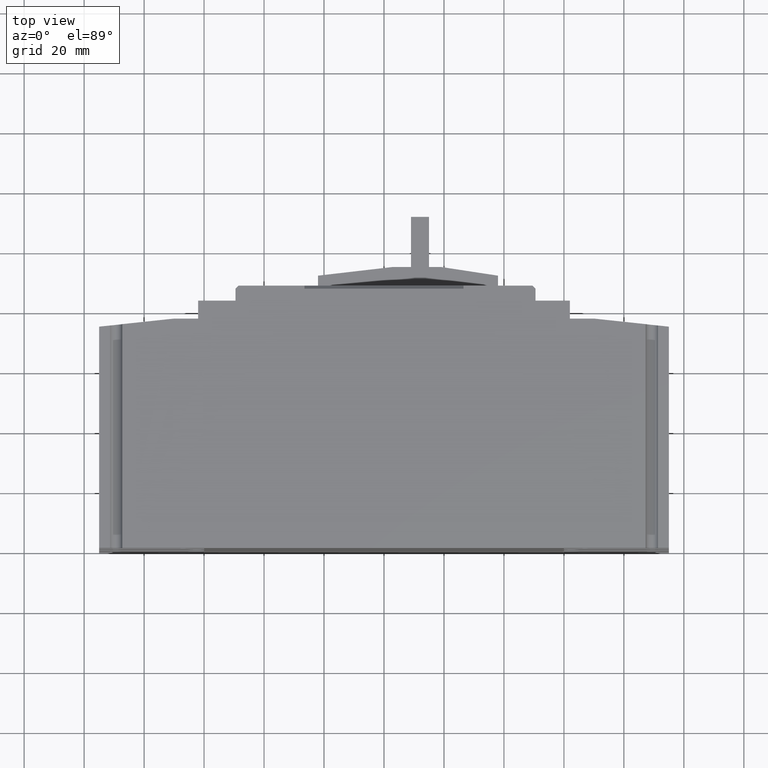
[diagram: clean part render]
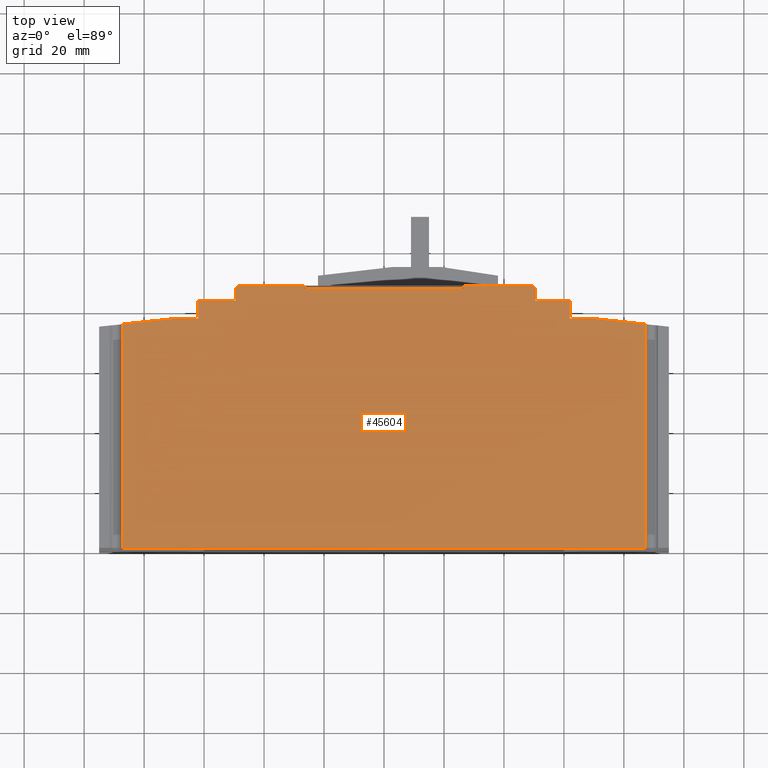
[diagram: same view with one face highlighted and labeled with its STEP entity id]
A machine part, top view. The second image highlights one B-rep face of the part: STEP entity #45604.
In plain terms, the highlighted planar face has unit normal (0, 0, 1).
Its self-contained STEP definition (entity closure, byte-faithful):
#690 = EDGE_CURVE ( 'NONE', #60217, #16622, #996, .T. ) ;
#996 = LINE ( 'NONE', #29893, #28588 ) ;
#1283 = VERTEX_POINT ( 'NONE', #23541 ) ;
#2080 = CARTESIAN_POINT ( 'NONE',  ( 1.043307086614173151, 3.405511811023621771, 2.066929133858268042 ) ) ;
#2768 = VECTOR ( 'NONE', #61384, 39.37007874015748854 ) ;
#3944 = LINE ( 'NONE', #38219, #2768 ) ;
#4146 = EDGE_CURVE ( 'NONE', #67129, #72442, #62729, .T. ) ;
#4301 = VERTEX_POINT ( 'NONE', #37973 ) ;
#5360 = LINE ( 'NONE', #75494, #38056 ) ;
#6426 = VECTOR ( 'NONE', #22695, 39.37007874015748143 ) ;
#6940 = ORIENTED_EDGE ( 'NONE', *, *, #30574, .T. ) ;
#7418 = VECTOR ( 'NONE', #69708, 39.37007874015748143 ) ;
#7577 = VECTOR ( 'NONE', #58575, 39.37007874015748143 ) ;
#7692 = VECTOR ( 'NONE', #20876, 39.37007874015748143 ) ;
#7850 = EDGE_CURVE ( 'NONE', #42527, #24253, #68748, .T. ) ;
#8232 = PLANE ( 'NONE',  #25455 ) ;
#8339 = LINE ( 'NONE', #73851, #23575 ) ;
#9472 = DIRECTION ( 'NONE',  ( 1.000000000000000000, 0.000000000000000000, 0.000000000000000000 ) ) ;
#10172 = EDGE_CURVE ( 'NONE', #31969, #14924, #3944, .T. ) ;
#10959 = VERTEX_POINT ( 'NONE', #47509 ) ;
#12604 = CARTESIAN_POINT ( 'NONE',  ( -3.437007874015748143, 0.000000000000000000, 2.066929133858267598 ) ) ;
#12917 = ORIENTED_EDGE ( 'NONE', *, *, #690, .T. ) ;
#13585 = VECTOR ( 'NONE', #58121, 39.37007874015748143 ) ;
#13627 = VECTOR ( 'NONE', #13734, 39.37007874015748143 ) ;
#13734 = DIRECTION ( 'NONE',  ( -1.000000000000000000, -0.000000000000000000, 0.000000000000000000 ) ) ;
#13758 = EDGE_CURVE ( 'NONE', #1283, #28240, #15140, .T. ) ;
#13808 = VECTOR ( 'NONE', #39438, 39.37007874015748854 ) ;
#14924 = VERTEX_POINT ( 'NONE', #36818 ) ;
#15107 = CARTESIAN_POINT ( 'NONE',  ( -2.755905511811036934, 3.011811023622046335, 2.066929133858267598 ) ) ;
#15140 = LINE ( 'NONE', #62866, #47527 ) ;
#15962 = CARTESIAN_POINT ( 'NONE',  ( -1.929133858267716661, 3.425196850393701364, 2.066929133858268930 ) ) ;
#15995 = CARTESIAN_POINT ( 'NONE',  ( 1.988188976377952999, 3.248031496062992574, 2.066929133858267598 ) ) ;
#16622 = VERTEX_POINT ( 'NONE', #42474 ) ;
#16826 = CARTESIAN_POINT ( 'NONE',  ( -3.740157480314960647, 3.248031496062992574, 2.066929133858267598 ) ) ;
#17096 = LINE ( 'NONE', #34854, #26410 ) ;
#18355 = LINE ( 'NONE', #12604, #33857 ) ;
#18667 = VERTEX_POINT ( 'NONE', #38019 ) ;
#19724 = CARTESIAN_POINT ( 'NONE',  ( -1.909448818897637734, 3.444881889763780514, 2.066929133858268930 ) ) ;
#20876 = DIRECTION ( 'NONE',  ( 0.000000000000000000, 1.000000000000000000, 0.000000000000000000 ) ) ;
#21775 = VERTEX_POINT ( 'NONE', #22177 ) ;
#21916 = CARTESIAN_POINT ( 'NONE',  ( -2.440944881889763884, 3.248031496062992574, 2.066929133858267598 ) ) ;
#22104 = CARTESIAN_POINT ( 'NONE',  ( 1.043307086614173151, 3.444881889763780070, 2.066929133858267598 ) ) ;
#22177 = CARTESIAN_POINT ( 'NONE',  ( -1.948818897637795589, 3.248031496062992574, 2.066929133858267598 ) ) ;
#22341 = DIRECTION ( 'NONE',  ( -1.000000000000000000, -0.000000000000000000, 0.000000000000000000 ) ) ;
#22658 = CARTESIAN_POINT ( 'NONE',  ( 3.437007874015748143, 0.000000000000000000, 2.066929133858267598 ) ) ;
#22695 = DIRECTION ( 'NONE',  ( 0.000000000000000000, -1.000000000000000000, -0.000000000000000000 ) ) ;
#23541 = CARTESIAN_POINT ( 'NONE',  ( 1.948818897637795367, 3.444881889763780070, 2.066929133858268486 ) ) ;
#23575 = VECTOR ( 'NONE', #9472, 39.37007874015748143 ) ;
#24218 = VECTOR ( 'NONE', #47815, 39.37007874015748143 ) ;
#24253 = VERTEX_POINT ( 'NONE', #19724 ) ;
#24475 = DIRECTION ( 'NONE',  ( -0.000000000000000000, 1.000000000000000000, 0.000000000000000000 ) ) ;
#25317 = LINE ( 'NONE', #36875, #75545 ) ;
#25455 = AXIS2_PLACEMENT_3D ( 'NONE', #31738, #55256, #61406 ) ;
#25639 = VERTEX_POINT ( 'NONE', #26558 ) ;
#25855 = EDGE_CURVE ( 'NONE', #1283, #38668, #5360, .T. ) ;
#25912 = CARTESIAN_POINT ( 'NONE',  ( 3.437007874015748143, 3.011811023622047223, 2.066929133858267598 ) ) ;
#26264 = CARTESIAN_POINT ( 'NONE',  ( -1.043307086614173151, 3.405511811023622215, 2.066929133858267598 ) ) ;
#26410 = VECTOR ( 'NONE', #28287, 39.37007874015748143 ) ;
#26558 = CARTESIAN_POINT ( 'NONE',  ( -3.437007874015748143, 0.000000000000000000, 2.066929133858267598 ) ) ;
#27033 = ORIENTED_EDGE ( 'NONE', *, *, #25855, .T. ) ;
#27666 = ORIENTED_EDGE ( 'NONE', *, *, #60574, .T. ) ;
#27689 = ORIENTED_EDGE ( 'NONE', *, *, #58168, .T. ) ;
#27829 = EDGE_CURVE ( 'NONE', #75397, #60217, #34683, .T. ) ;
#28240 = VERTEX_POINT ( 'NONE', #52689 ) ;
#28287 = DIRECTION ( 'NONE',  ( 0.000000000000000000, -1.000000000000000000, -0.000000000000000000 ) ) ;
#28444 = DIRECTION ( 'NONE',  ( -1.000000000000000000, -0.000000000000000000, 0.000000000000000000 ) ) ;
#28588 = VECTOR ( 'NONE', #24475, 39.37007874015748143 ) ;
#29195 = CARTESIAN_POINT ( 'NONE',  ( -1.948818897637795589, 3.405511811023622215, 2.066929133858268042 ) ) ;
#29547 = DIRECTION ( 'NONE',  ( -1.000000000000000000, -0.000000000000000000, 0.000000000000000000 ) ) ;
#29665 = CARTESIAN_POINT ( 'NONE',  ( -3.740157480314960647, 3.405511811023622215, 2.066929133858267598 ) ) ;
#29893 = CARTESIAN_POINT ( 'NONE',  ( -1.043307086614173151, 0.000000000000000000, 2.066929133858267598 ) ) ;
#30448 = EDGE_LOOP ( 'NONE', ( #69252, #12917, #61517, #46206, #34714, #70308, #27689, #69878, #59277, #49672, #51989, #6940, #38916, #45428, #59156, #54321, #41354, #69284, #27033, #27666 ) ) ;
#30574 = EDGE_CURVE ( 'NONE', #70862, #4301, #73343, .T. ) ;
#31161 = EDGE_CURVE ( 'NONE', #21775, #47436, #52395, .T. ) ;
#31738 = CARTESIAN_POINT ( 'NONE',  ( -3.740157480314960647, 0.000000000000000000, 2.066929133858267598 ) ) ;
#31969 = VERTEX_POINT ( 'NONE', #15107 ) ;
#33235 = EDGE_CURVE ( 'NONE', #10959, #31969, #74410, .T. ) ;
#33857 = VECTOR ( 'NONE', #65784, 39.37007874015748143 ) ;
#34683 = LINE ( 'NONE', #29665, #7577 ) ;
#34714 = ORIENTED_EDGE ( 'NONE', *, *, #65970, .T. ) ;
#34854 = CARTESIAN_POINT ( 'NONE',  ( 1.043307086614173151, 0.000000000000000000, 2.066929133858267598 ) ) ;
#35779 = LINE ( 'NONE', #58535, #6426 ) ;
#36541 = VERTEX_POINT ( 'NONE', #45785 ) ;
#36818 = CARTESIAN_POINT ( 'NONE',  ( -3.437007874015747699, 2.939069291338586964, 2.066929133858267598 ) ) ;
#36875 = CARTESIAN_POINT ( 'NONE',  ( -2.440944881889763884, 0.000000000000000000, 2.066929133858267598 ) ) ;
#37264 = VECTOR ( 'NONE', #22341, 39.37007874015748143 ) ;
#37753 = EDGE_CURVE ( 'NONE', #72442, #28240, #63537, .T. ) ;
#37973 = CARTESIAN_POINT ( 'NONE',  ( 3.437007874015748587, 2.939069291338573642, 2.066929133858267598 ) ) ;
#38019 = CARTESIAN_POINT ( 'NONE',  ( 2.440944881889763884, 3.011811023622047223, 2.066929133858267598 ) ) ;
#38056 = VECTOR ( 'NONE', #28444, 39.37007874015748143 ) ;
#38128 = VECTOR ( 'NONE', #73239, 39.37007874015748143 ) ;
#38219 = CARTESIAN_POINT ( 'NONE',  ( -2.755905511811024056, 3.011811023622047223, 2.066929133858267598 ) ) ;
#38668 = VERTEX_POINT ( 'NONE', #22104 ) ;
#38842 = LINE ( 'NONE', #45001, #38128 ) ;
#38916 = ORIENTED_EDGE ( 'NONE', *, *, #45886, .T. ) ;
#39438 = DIRECTION ( 'NONE',  ( 0.7071067811865474617, 0.7071067811865474617, -0.000000000000000000 ) ) ;
#41354 = ORIENTED_EDGE ( 'NONE', *, *, #37753, .T. ) ;
#41639 = CARTESIAN_POINT ( 'NONE',  ( 3.437007874015748587, 2.939069291338582968, 2.066929133858267598 ) ) ;
#42474 = CARTESIAN_POINT ( 'NONE',  ( -1.043307086614173151, 3.444881889763780070, 2.066929133858267598 ) ) ;
#42527 = VERTEX_POINT ( 'NONE', #29195 ) ;
#43318 = EDGE_CURVE ( 'NONE', #16622, #24253, #66534, .T. ) ;
#43662 = FACE_OUTER_BOUND ( 'NONE', #30448, .T. ) ;
#43990 = DIRECTION ( 'NONE',  ( 0.7071067811865474617, -0.7071067811865474617, -0.000000000000000000 ) ) ;
#45001 = CARTESIAN_POINT ( 'NONE',  ( -3.740157480314960647, 3.011811023622047223, 2.066929133858267598 ) ) ;
#45428 = ORIENTED_EDGE ( 'NONE', *, *, #70738, .T. ) ;
#45604 = ADVANCED_FACE ( 'NONE', ( #43662 ), #8232, .T. ) ;
#45785 = CARTESIAN_POINT ( 'NONE',  ( 2.755905511811004960, 3.011811023622048555, 2.066929133858267598 ) ) ;
#45886 = EDGE_CURVE ( 'NONE', #4301, #36541, #47443, .T. ) ;
#46194 = CARTESIAN_POINT ( 'NONE',  ( -3.740157480314960647, 3.011811023622047223, 2.066929133858267598 ) ) ;
#46206 = ORIENTED_EDGE ( 'NONE', *, *, #7850, .F. ) ;
#46520 = LINE ( 'NONE', #65825, #13585 ) ;
#46961 = CARTESIAN_POINT ( 'NONE',  ( 2.440944881889763884, 3.248031496062992574, 2.066929133858267598 ) ) ;
#47436 = VERTEX_POINT ( 'NONE', #21916 ) ;
#47443 = LINE ( 'NONE', #41639, #24218 ) ;
#47509 = CARTESIAN_POINT ( 'NONE',  ( -2.440944881889763884, 3.011811023622047223, 2.066929133858267598 ) ) ;
#47527 = VECTOR ( 'NONE', #43990, 39.37007874015748854 ) ;
#47815 = DIRECTION ( 'NONE',  ( -0.9943452092047680990, 0.1061960683430690500, 0.000000000000000000 ) ) ;
#49672 = ORIENTED_EDGE ( 'NONE', *, *, #61323, .T. ) ;
#51989 = ORIENTED_EDGE ( 'NONE', *, *, #72290, .T. ) ;
#52395 = LINE ( 'NONE', #58194, #37264 ) ;
#52689 = CARTESIAN_POINT ( 'NONE',  ( 1.988188976377953221, 3.405511811023622215, 2.066929133858268042 ) ) ;
#54321 = ORIENTED_EDGE ( 'NONE', *, *, #4146, .T. ) ;
#55256 = DIRECTION ( 'NONE',  ( 0.000000000000000000, 0.000000000000000000, 1.000000000000000000 ) ) ;
#55348 = CARTESIAN_POINT ( 'NONE',  ( -3.740157480314960647, 3.444881889763780070, 2.066929133858267598 ) ) ;
#57378 = CARTESIAN_POINT ( 'NONE',  ( 1.988188976377953443, 0.000000000000000000, 2.066929133858267598 ) ) ;
#57754 = DIRECTION ( 'NONE',  ( -0.000000000000000000, 1.000000000000000000, 0.000000000000000000 ) ) ;
#58121 = DIRECTION ( 'NONE',  ( -0.000000000000000000, 1.000000000000000000, 0.000000000000000000 ) ) ;
#58168 = EDGE_CURVE ( 'NONE', #47436, #10959, #25317, .T. ) ;
#58194 = CARTESIAN_POINT ( 'NONE',  ( -3.740157480314960647, 3.248031496062992574, 2.066929133858267598 ) ) ;
#58535 = CARTESIAN_POINT ( 'NONE',  ( -1.948818897637795367, 0.000000000000000000, 2.066929133858267598 ) ) ;
#58575 = DIRECTION ( 'NONE',  ( -1.000000000000000000, -0.000000000000000000, 0.000000000000000000 ) ) ;
#59156 = ORIENTED_EDGE ( 'NONE', *, *, #64352, .T. ) ;
#59277 = ORIENTED_EDGE ( 'NONE', *, *, #10172, .T. ) ;
#60217 = VERTEX_POINT ( 'NONE', #26264 ) ;
#60574 = EDGE_CURVE ( 'NONE', #38668, #75397, #17096, .T. ) ;
#61323 = EDGE_CURVE ( 'NONE', #14924, #25639, #18355, .T. ) ;
#61384 = DIRECTION ( 'NONE',  ( -0.9943452092047680990, -0.1061960683430691194, 0.000000000000000000 ) ) ;
#61406 = DIRECTION ( 'NONE',  ( 1.000000000000000000, 0.000000000000000000, -0.000000000000000000 ) ) ;
#61517 = ORIENTED_EDGE ( 'NONE', *, *, #43318, .T. ) ;
#62729 = LINE ( 'NONE', #16826, #63713 ) ;
#62866 = CARTESIAN_POINT ( 'NONE',  ( 1.968503937007874072, 3.425196850393701364, 2.066929133858268930 ) ) ;
#63537 = LINE ( 'NONE', #57378, #72953 ) ;
#63713 = VECTOR ( 'NONE', #29547, 39.37007874015748143 ) ;
#64352 = EDGE_CURVE ( 'NONE', #18667, #67129, #46520, .T. ) ;
#65784 = DIRECTION ( 'NONE',  ( 0.000000000000000000, -1.000000000000000000, -0.000000000000000000 ) ) ;
#65825 = CARTESIAN_POINT ( 'NONE',  ( 2.440944881889763884, 0.000000000000000000, 2.066929133858267598 ) ) ;
#65970 = EDGE_CURVE ( 'NONE', #42527, #21775, #35779, .T. ) ;
#66534 = LINE ( 'NONE', #55348, #13627 ) ;
#67129 = VERTEX_POINT ( 'NONE', #46961 ) ;
#68748 = LINE ( 'NONE', #15962, #13808 ) ;
#69252 = ORIENTED_EDGE ( 'NONE', *, *, #27829, .T. ) ;
#69284 = ORIENTED_EDGE ( 'NONE', *, *, #13758, .F. ) ;
#69708 = DIRECTION ( 'NONE',  ( -1.000000000000000000, -0.000000000000000000, 0.000000000000000000 ) ) ;
#69878 = ORIENTED_EDGE ( 'NONE', *, *, #33235, .T. ) ;
#70308 = ORIENTED_EDGE ( 'NONE', *, *, #31161, .T. ) ;
#70738 = EDGE_CURVE ( 'NONE', #36541, #18667, #38842, .T. ) ;
#70862 = VERTEX_POINT ( 'NONE', #22658 ) ;
#72290 = EDGE_CURVE ( 'NONE', #25639, #70862, #8339, .T. ) ;
#72442 = VERTEX_POINT ( 'NONE', #15995 ) ;
#72743 = DIRECTION ( 'NONE',  ( 0.000000000000000000, -1.000000000000000000, -0.000000000000000000 ) ) ;
#72953 = VECTOR ( 'NONE', #57754, 39.37007874015748143 ) ;
#73239 = DIRECTION ( 'NONE',  ( -1.000000000000000000, -0.000000000000000000, 0.000000000000000000 ) ) ;
#73343 = LINE ( 'NONE', #25912, #7692 ) ;
#73851 = CARTESIAN_POINT ( 'NONE',  ( 0.000000000000000000, 0.000000000000000000, 2.066929133858267598 ) ) ;
#74410 = LINE ( 'NONE', #46194, #7418 ) ;
#75397 = VERTEX_POINT ( 'NONE', #2080 ) ;
#75494 = CARTESIAN_POINT ( 'NONE',  ( -3.740157480314960647, 3.444881889763780070, 2.066929133858267598 ) ) ;
#75545 = VECTOR ( 'NONE', #72743, 39.37007874015748143 ) ;